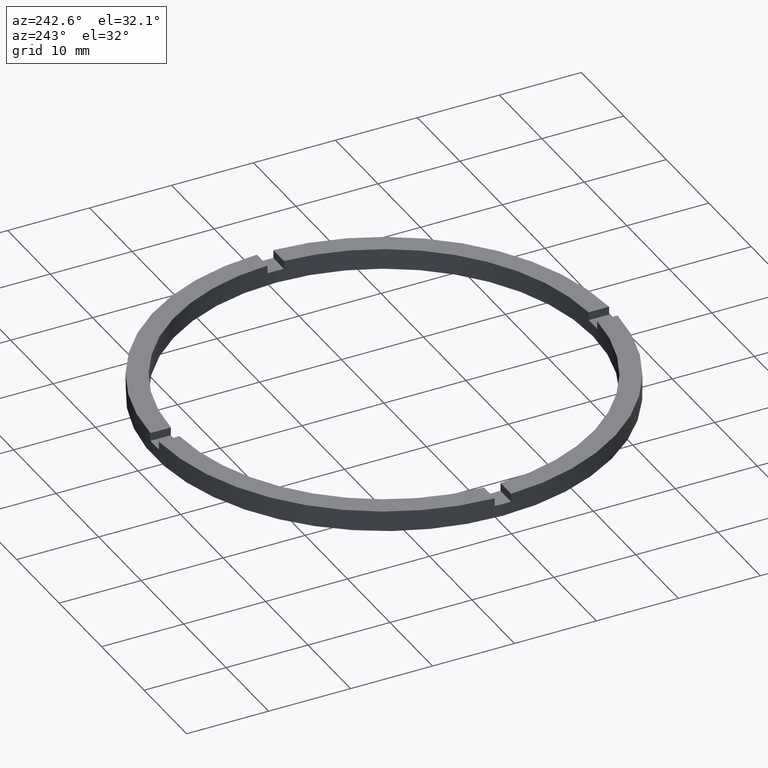
[diagram: clean part render]
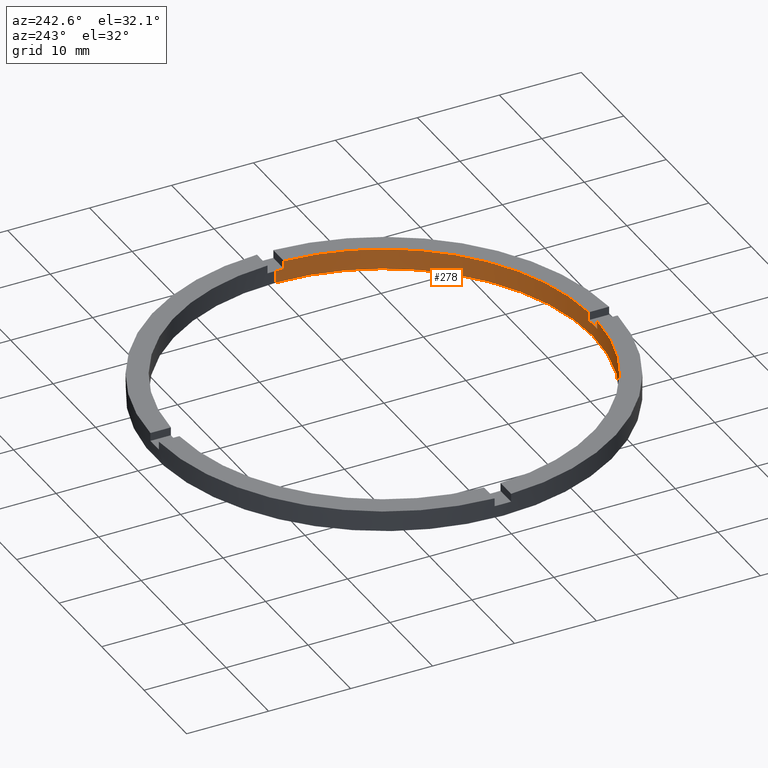
[diagram: same view with one face highlighted and labeled with its STEP entity id]
A machine part, auxiliary view. The second image highlights one B-rep face of the part: STEP entity #278.
In plain terms, the highlighted cylindrical surface (partial cylindrical patch) has radius 25.5 mm, axis along (-0, -0, -1).
Its self-contained STEP definition (entity closure, byte-faithful):
#8 = CARTESIAN_POINT ( 'NONE',  ( 0.000000000000000000, 0.000000000000000000, 0.000000000000000000 ) ) ;
#15 = CARTESIAN_POINT ( 'NONE',  ( -1.000000000000160316, -25.48038461248180653, 1.500000000000000000 ) ) ;
#19 = CARTESIAN_POINT ( 'NONE',  ( -25.50000000000000000, 0.000000000000000000, 2.500000000000000000 ) ) ;
#27 = EDGE_CURVE ( 'NONE', #476, #204, #451, .T. ) ;
#30 = DIRECTION ( 'NONE',  ( 1.000000000000000000, 0.000000000000000000, 0.000000000000000000 ) ) ;
#45 = CIRCLE ( 'NONE', #179, 25.50000000000000000 ) ;
#54 = DIRECTION ( 'NONE',  ( 1.000000000000000000, 0.000000000000000000, 0.000000000000000000 ) ) ;
#58 = CIRCLE ( 'NONE', #383, 25.50000000000000000 ) ;
#62 = CIRCLE ( 'NONE', #314, 25.50000000000000000 ) ;
#74 = DIRECTION ( 'NONE',  ( 0.000000000000000000, 0.000000000000000000, 1.000000000000000000 ) ) ;
#75 = AXIS2_PLACEMENT_3D ( 'NONE', #680, #426, #146 ) ;
#78 = CARTESIAN_POINT ( 'NONE',  ( 25.50000000000000000, 3.122849337825750222E-15, 1.500000000000000000 ) ) ;
#80 = DIRECTION ( 'NONE',  ( -1.000000000000000000, 0.000000000000000000, 0.000000000000000000 ) ) ;
#89 = DIRECTION ( 'NONE',  ( -0.000000000000000000, -0.000000000000000000, -1.000000000000000000 ) ) ;
#98 = DIRECTION ( 'NONE',  ( 0.000000000000000000, 0.000000000000000000, 1.000000000000000000 ) ) ;
#115 = VECTOR ( 'NONE', #682, 1000.000000000000000 ) ;
#120 = LINE ( 'NONE', #300, #115 ) ;
#121 = ORIENTED_EDGE ( 'NONE', *, *, #27, .T. ) ;
#126 = LINE ( 'NONE', #452, #607 ) ;
#136 = VECTOR ( 'NONE', #289, 1000.000000000000000 ) ;
#138 = LINE ( 'NONE', #705, #136 ) ;
#143 = EDGE_CURVE ( 'NONE', #215, #204, #126, .T. ) ;
#146 = DIRECTION ( 'NONE',  ( 1.000000000000000000, 0.000000000000000000, 0.000000000000000000 ) ) ;
#149 = CARTESIAN_POINT ( 'NONE',  ( 0.000000000000000000, 0.000000000000000000, 1.500000000000000000 ) ) ;
#153 = DIRECTION ( 'NONE',  ( 0.000000000000000000, 0.000000000000000000, 1.000000000000000000 ) ) ;
#166 = EDGE_CURVE ( 'NONE', #706, #750, #350, .T. ) ;
#176 = AXIS2_PLACEMENT_3D ( 'NONE', #321, #640, #80 ) ;
#179 = AXIS2_PLACEMENT_3D ( 'NONE', #8, #74, #54 ) ;
#181 = CYLINDRICAL_SURFACE ( 'NONE', #176, 25.50000000000000000 ) ;
#204 = VERTEX_POINT ( 'NONE', #638 ) ;
#215 = VERTEX_POINT ( 'NONE', #782 ) ;
#228 = ORIENTED_EDGE ( 'NONE', *, *, #389, .F. ) ;
#237 = ORIENTED_EDGE ( 'NONE', *, *, #774, .T. ) ;
#249 = ORIENTED_EDGE ( 'NONE', *, *, #393, .F. ) ;
#255 = VERTEX_POINT ( 'NONE', #78 ) ;
#265 = EDGE_CURVE ( 'NONE', #255, #606, #626, .T. ) ;
#267 = EDGE_CURVE ( 'NONE', #476, #506, #120, .T. ) ;
#276 = CARTESIAN_POINT ( 'NONE',  ( 0.000000000000000000, 0.000000000000000000, 2.500000000000000000 ) ) ;
#278 = ADVANCED_FACE ( 'NONE', ( #441 ), #181, .F. ) ;
#289 = DIRECTION ( 'NONE',  ( -0.000000000000000000, -0.000000000000000000, -1.000000000000000000 ) ) ;
#300 = CARTESIAN_POINT ( 'NONE',  ( 0.9999999999998397948, -25.48038461248181719, 2.500000000000000000 ) ) ;
#314 = AXIS2_PLACEMENT_3D ( 'NONE', #149, #493, #783 ) ;
#321 = CARTESIAN_POINT ( 'NONE',  ( 0.000000000000000000, 0.000000000000000000, 2.500000000000000000 ) ) ;
#343 = VERTEX_POINT ( 'NONE', #413 ) ;
#345 = ORIENTED_EDGE ( 'NONE', *, *, #143, .F. ) ;
#348 = CARTESIAN_POINT ( 'NONE',  ( 25.50000000000000000, 3.122849337825750222E-15, 0.000000000000000000 ) ) ;
#350 = LINE ( 'NONE', #19, #646 ) ;
#355 = VERTEX_POINT ( 'NONE', #418 ) ;
#383 = AXIS2_PLACEMENT_3D ( 'NONE', #276, #98, #30 ) ;
#389 = EDGE_CURVE ( 'NONE', #355, #343, #138, .T. ) ;
#393 = EDGE_CURVE ( 'NONE', #504, #468, #396, .T. ) ;
#396 = LINE ( 'NONE', #578, #660 ) ;
#403 = DIRECTION ( 'NONE',  ( -0.000000000000000000, 0.000000000000000000, 1.000000000000000000 ) ) ;
#407 = CARTESIAN_POINT ( 'NONE',  ( 0.000000000000000000, 0.000000000000000000, 1.500000000000000000 ) ) ;
#413 = CARTESIAN_POINT ( 'NONE',  ( -25.48038461248181008, -1.000000000000026423, 1.500000000000000000 ) ) ;
#415 = CARTESIAN_POINT ( 'NONE',  ( -1.000000000000160316, -25.48038461248180653, 2.500000000000000000 ) ) ;
#418 = CARTESIAN_POINT ( 'NONE',  ( -25.48038461248181008, -1.000000000000026423, 2.500000000000000000 ) ) ;
#426 = DIRECTION ( 'NONE',  ( 0.000000000000000000, 0.000000000000000000, 1.000000000000000000 ) ) ;
#428 = CARTESIAN_POINT ( 'NONE',  ( 25.50000000000000000, 3.122849337825750222E-15, 2.500000000000000000 ) ) ;
#441 = FACE_OUTER_BOUND ( 'NONE', #465, .T. ) ;
#447 = CARTESIAN_POINT ( 'NONE',  ( 0.000000000000000000, 0.000000000000000000, 2.500000000000000000 ) ) ;
#451 = CIRCLE ( 'NONE', #528, 25.50000000000000000 ) ;
#452 = CARTESIAN_POINT ( 'NONE',  ( 25.48038461248180653, -1.000000000000157208, 2.500000000000000000 ) ) ;
#465 = EDGE_LOOP ( 'NONE', ( #473, #510, #484, #598, #637, #228, #237, #249, #634, #772, #121, #345 ) ) ;
#468 = VERTEX_POINT ( 'NONE', #415 ) ;
#470 = DIRECTION ( 'NONE',  ( -0.000000000000000000, -0.000000000000000000, -1.000000000000000000 ) ) ;
#473 = ORIENTED_EDGE ( 'NONE', *, *, #719, .T. ) ;
#476 = VERTEX_POINT ( 'NONE', #685 ) ;
#479 = CARTESIAN_POINT ( 'NONE',  ( -25.50000000000000000, 0.000000000000000000, 1.500000000000000000 ) ) ;
#484 = ORIENTED_EDGE ( 'NONE', *, *, #673, .F. ) ;
#493 = DIRECTION ( 'NONE',  ( 0.000000000000000000, 0.000000000000000000, 1.000000000000000000 ) ) ;
#504 = VERTEX_POINT ( 'NONE', #15 ) ;
#505 = DIRECTION ( 'NONE',  ( 1.000000000000000000, 0.000000000000000000, 0.000000000000000000 ) ) ;
#506 = VERTEX_POINT ( 'NONE', #756 ) ;
#510 = ORIENTED_EDGE ( 'NONE', *, *, #265, .T. ) ;
#522 = DIRECTION ( 'NONE',  ( 0.000000000000000000, 0.000000000000000000, 1.000000000000000000 ) ) ;
#523 = EDGE_CURVE ( 'NONE', #504, #506, #577, .T. ) ;
#528 = AXIS2_PLACEMENT_3D ( 'NONE', #447, #153, #740 ) ;
#573 = CIRCLE ( 'NONE', #75, 25.50000000000000000 ) ;
#577 = CIRCLE ( 'NONE', #752, 25.50000000000000000 ) ;
#578 = CARTESIAN_POINT ( 'NONE',  ( -1.000000000000160316, -25.48038461248180653, 2.500000000000000000 ) ) ;
#598 = ORIENTED_EDGE ( 'NONE', *, *, #166, .F. ) ;
#606 = VERTEX_POINT ( 'NONE', #348 ) ;
#607 = VECTOR ( 'NONE', #522, 1000.000000000000000 ) ;
#626 = LINE ( 'NONE', #428, #630 ) ;
#630 = VECTOR ( 'NONE', #470, 1000.000000000000000 ) ;
#634 = ORIENTED_EDGE ( 'NONE', *, *, #523, .T. ) ;
#637 = ORIENTED_EDGE ( 'NONE', *, *, #689, .T. ) ;
#638 = CARTESIAN_POINT ( 'NONE',  ( 25.48038461248180653, -1.000000000000157208, 2.500000000000000000 ) ) ;
#640 = DIRECTION ( 'NONE',  ( -0.000000000000000000, -0.000000000000000000, -1.000000000000000000 ) ) ;
#646 = VECTOR ( 'NONE', #89, 1000.000000000000000 ) ;
#660 = VECTOR ( 'NONE', #665, 1000.000000000000000 ) ;
#665 = DIRECTION ( 'NONE',  ( 0.000000000000000000, 0.000000000000000000, 1.000000000000000000 ) ) ;
#673 = EDGE_CURVE ( 'NONE', #750, #606, #45, .T. ) ;
#680 = CARTESIAN_POINT ( 'NONE',  ( 0.000000000000000000, 0.000000000000000000, 1.500000000000000000 ) ) ;
#682 = DIRECTION ( 'NONE',  ( -0.000000000000000000, -0.000000000000000000, -1.000000000000000000 ) ) ;
#685 = CARTESIAN_POINT ( 'NONE',  ( 0.9999999999998397948, -25.48038461248181719, 2.500000000000000000 ) ) ;
#689 = EDGE_CURVE ( 'NONE', #706, #343, #573, .T. ) ;
#705 = CARTESIAN_POINT ( 'NONE',  ( -25.48038461248181008, -1.000000000000026423, 2.500000000000000000 ) ) ;
#706 = VERTEX_POINT ( 'NONE', #479 ) ;
#719 = EDGE_CURVE ( 'NONE', #215, #255, #62, .T. ) ;
#734 = CARTESIAN_POINT ( 'NONE',  ( -25.50000000000000000, 0.000000000000000000, 0.000000000000000000 ) ) ;
#740 = DIRECTION ( 'NONE',  ( 1.000000000000000000, 0.000000000000000000, 0.000000000000000000 ) ) ;
#750 = VERTEX_POINT ( 'NONE', #734 ) ;
#752 = AXIS2_PLACEMENT_3D ( 'NONE', #407, #403, #505 ) ;
#756 = CARTESIAN_POINT ( 'NONE',  ( 0.9999999999998397948, -25.48038461248181719, 1.500000000000000000 ) ) ;
#772 = ORIENTED_EDGE ( 'NONE', *, *, #267, .F. ) ;
#774 = EDGE_CURVE ( 'NONE', #355, #468, #58, .T. ) ;
#782 = CARTESIAN_POINT ( 'NONE',  ( 25.48038461248180653, -1.000000000000157208, 1.500000000000000000 ) ) ;
#783 = DIRECTION ( 'NONE',  ( 1.000000000000000000, 0.000000000000000000, 0.000000000000000000 ) ) ;